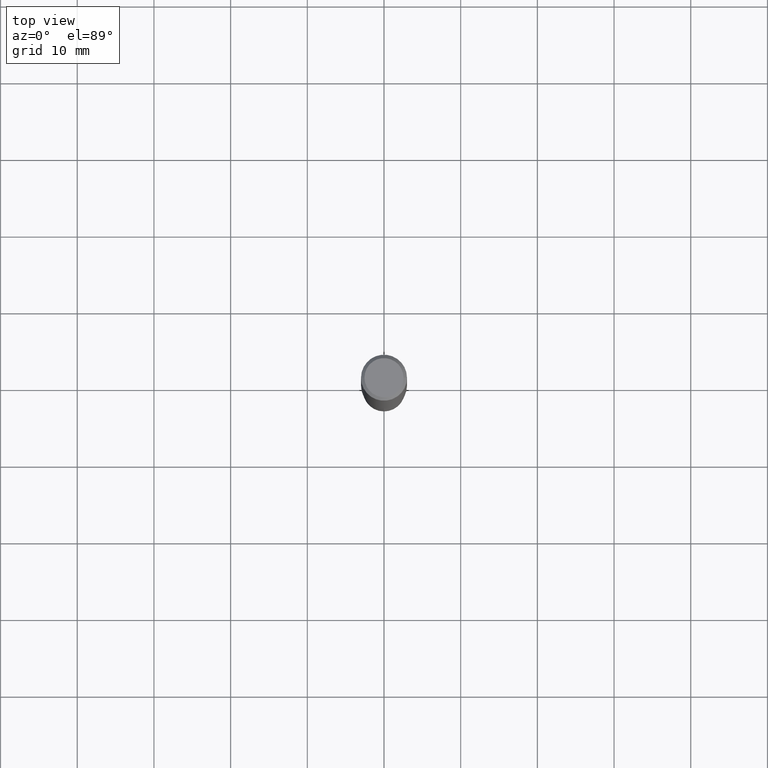
[diagram: clean part render]
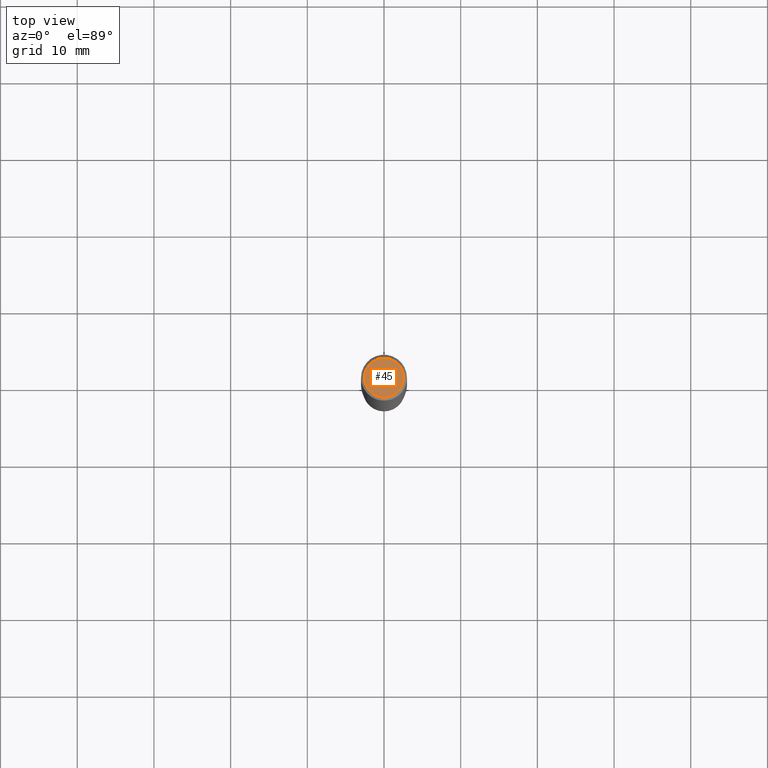
[diagram: same view with one face highlighted and labeled with its STEP entity id]
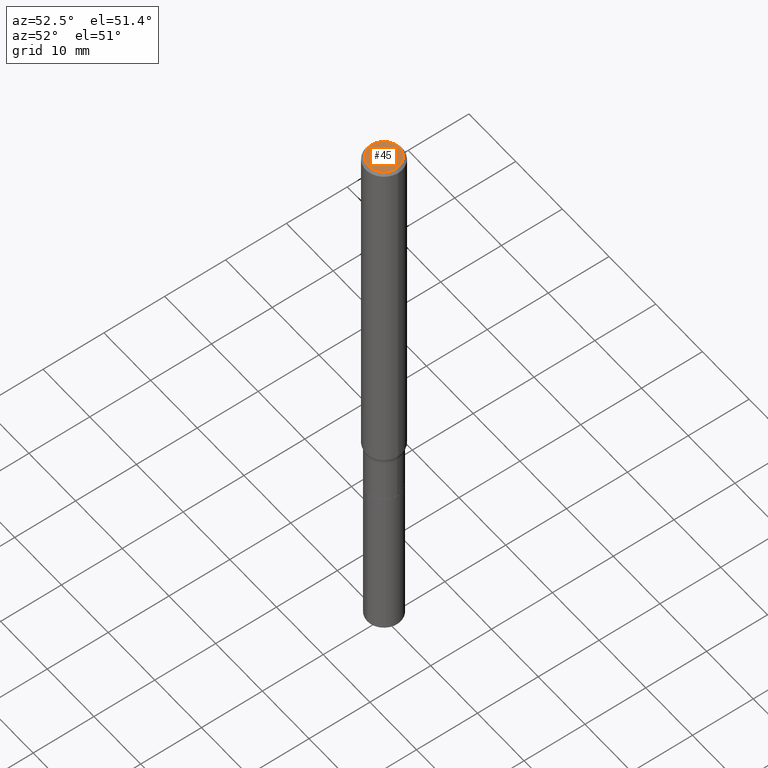
[diagram: same view with one face highlighted and labeled with its STEP entity id]
A machine part, top view. The second image highlights one B-rep face of the part: STEP entity #45.
A second angle (auxiliary view) of the same face is appended — the face is thin or edge-on in the first view.
In plain terms, the highlighted planar face has unit normal (0, -0, -1).
Its self-contained STEP definition (entity closure, byte-faithful):
#20 = VERTEX_POINT ( 'NONE', #136 ) ;
#21 = EDGE_LOOP ( 'NONE', ( #47, #133 ) ) ;
#44 = CARTESIAN_POINT ( 'NONE',  ( 7.015701749847187307E-46, -1.001656274515824970E-31, -2.868857591682589212E-17 ) ) ;
#45 = ADVANCED_FACE ( 'NONE', ( #419 ), #182, .F. ) ;
#47 = ORIENTED_EDGE ( 'NONE', *, *, #359, .T. ) ;
#56 = AXIS2_PLACEMENT_3D ( 'NONE', #384, #211, #113 ) ;
#82 = DIRECTION ( 'NONE',  ( 1.000000000000000000, -6.982962677686266711E-15, 4.875668750515085695E-29 ) ) ;
#113 = DIRECTION ( 'NONE',  ( -1.000000000000000000, 6.982962677686265922E-15, -4.876176775795935793E-29 ) ) ;
#126 = AXIS2_PLACEMENT_3D ( 'NONE', #44, #186, #432 ) ;
#133 = ORIENTED_EDGE ( 'NONE', *, *, #341, .T. ) ;
#136 = CARTESIAN_POINT ( 'NONE',  ( 0.1003850000000000159, -7.803837484803599345E-16, -2.868857591682071522E-17 ) ) ;
#182 = PLANE ( 'NONE',  #56 ) ;
#186 = DIRECTION ( 'NONE',  ( -2.445468806185136597E-29, 3.491481338843145583E-15, 1.000000000000000000 ) ) ;
#190 = CIRCLE ( 'NONE', #126, 0.1003850000000000159 ) ;
#211 = DIRECTION ( 'NONE',  ( 2.438088387897960049E-29, -3.491481338843145188E-15, -1.000000000000000000 ) ) ;
#257 = DIRECTION ( 'NONE',  ( -2.445468806185136597E-29, 3.491481338843145583E-15, 1.000000000000000000 ) ) ;
#316 = CARTESIAN_POINT ( 'NONE',  ( -0.1003850000000000159, 7.319105043583384717E-16, -2.868857591683090262E-17 ) ) ;
#335 = VERTEX_POINT ( 'NONE', #316 ) ;
#341 = EDGE_CURVE ( 'NONE', #20, #335, #382, .T. ) ;
#359 = EDGE_CURVE ( 'NONE', #335, #20, #190, .T. ) ;
#366 = AXIS2_PLACEMENT_3D ( 'NONE', #390, #257, #82 ) ;
#382 = CIRCLE ( 'NONE', #366, 0.1003850000000000159 ) ;
#384 = CARTESIAN_POINT ( 'NONE',  ( 3.507850874923593654E-46, -5.008281372579124849E-32, -1.434428795841294606E-17 ) ) ;
#390 = CARTESIAN_POINT ( 'NONE',  ( 7.015701749847187307E-46, -1.001656274515824970E-31, -2.868857591682589212E-17 ) ) ;
#419 = FACE_OUTER_BOUND ( 'NONE', #21, .T. ) ;
#432 = DIRECTION ( 'NONE',  ( 1.000000000000000000, -6.982962677686266711E-15, 4.875668750515085695E-29 ) ) ;